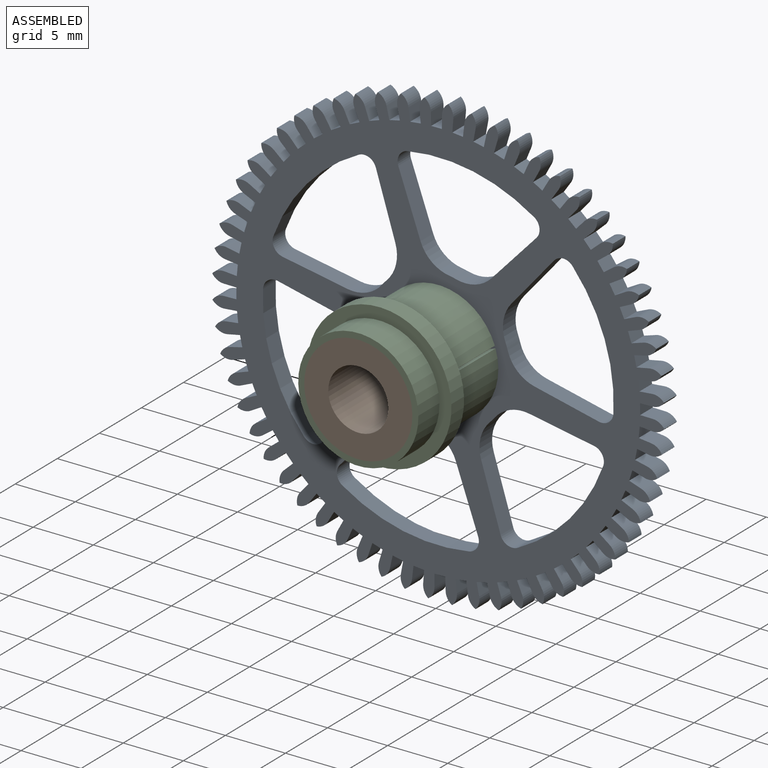
[diagram: assembled view]
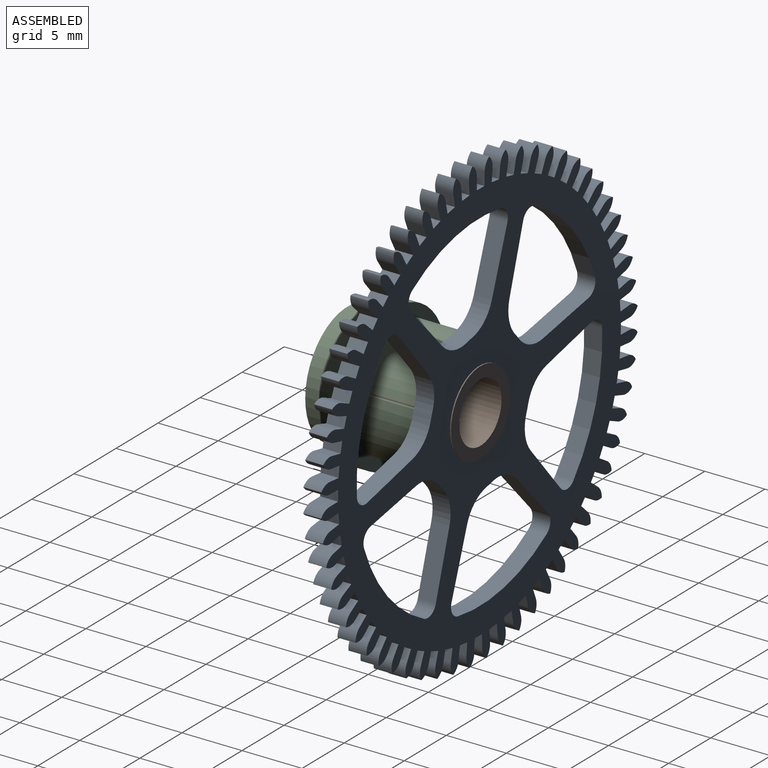
[diagram: assembled view, second angle]
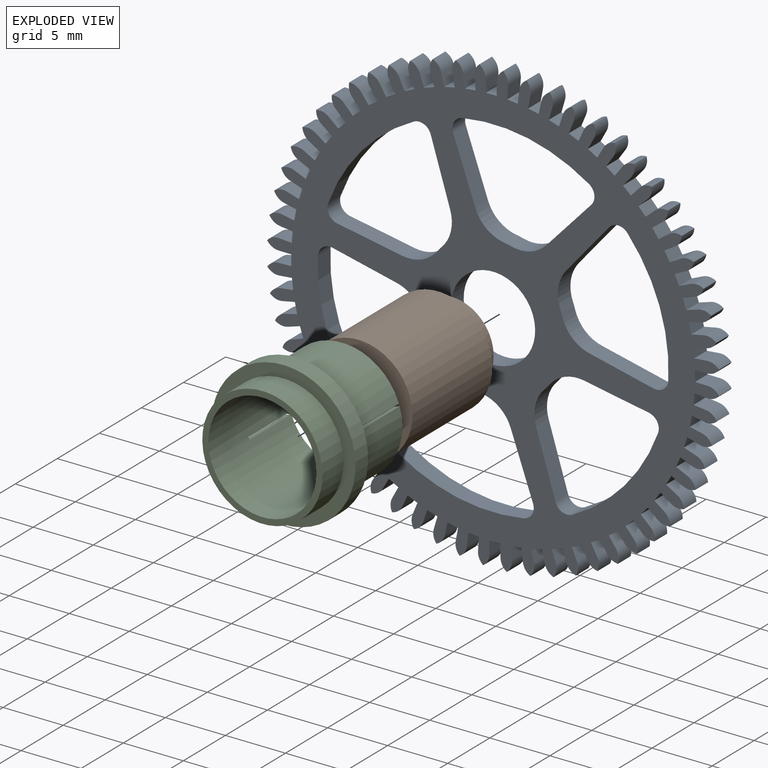
[diagram: exploded view]
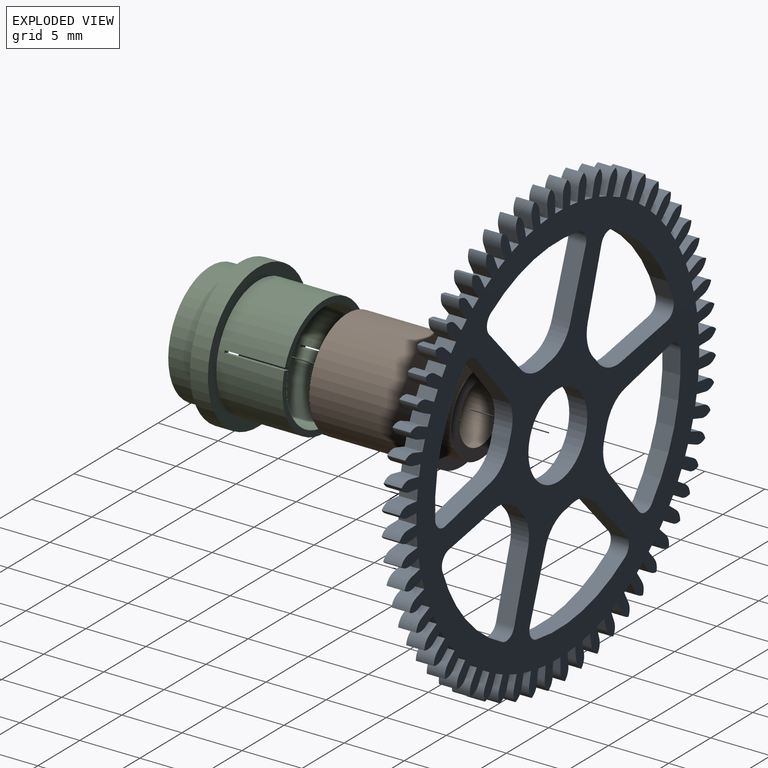
[diagram: exploded view, second angle]
ASSEMBLY  parts=3 mates=2
PART A: 351 faces, bbox 37.6x1.5x37.6 mm
  f0: cylinder r=3mm len=2.72mm, axis (0,-1,0), area 4.8mm2, adj f1,f5,f49,f50
  f1: cylinder r=6mm len=1.5mm, axis (0,-1,0), area 0.9mm2, adj f0,f2,f49,f50
  f2: cylinder r=3mm len=2.72mm, axis (0,-1,0), area 4.8mm2, adj f1,f3,f49,f50
  f3: plane 4.69x2.85mm, normal (0.52,0,-0.85), area 8.2mm2, adj f2,f6,f49,f50
  f4: cylinder r=1mm len=1.5mm, axis (0,-1,0), area 2.6mm2, adj f5,f7,f49,f50
  f5: plane 4.69x2.85mm, normal (0.52,0,0.85), area 8.2mm2, adj f0,f4,f49,f50
  f6: cylinder r=1mm len=1.5mm, axis (0,-1,0), area 2.6mm2, adj f3,f7,f49,f50
  f7: cylinder r=14.6mm len=10.75mm, axis (0,-1,0), area 16.5mm2, adj f4,f6,f49,f50
  f8: cylinder r=3mm len=2.6mm, axis (0,-1,0), area 4.8mm2, adj f9,f13,f49,f50
  f9: cylinder r=6mm len=1.5mm, axis (0,-1,0), area 0.9mm2, adj f8,f10,f49,f50
  f10: cylinder r=3mm len=3.07mm, axis (0,-1,0), area 4.8mm2, adj f9,f11,f49,f50
  f11: plane 4.81x2.64mm, normal (-0.48,0,-0.88), area 8.2mm2, adj f10,f14,f49,f50
  f12: cylinder r=1mm len=1.5mm, axis (0,-1,0), area 2.6mm2, adj f13,f15,f49,f50
  f13: plane 5.49x1.5mm, normal (1,0,-0.02), area 8.2mm2, adj f8,f12,f49,f50
  f14: cylinder r=1mm len=1.5mm, axis (0,-1,0), area 2.6mm2, adj f11,f15,f49,f50
  f15: cylinder r=14.6mm len=9.31mm, axis (0,-1,0), area 16.5mm2, adj f12,f14,f49,f50
  f16: cylinder r=3mm len=3.07mm, axis (0,-1,0), area 4.8mm2, adj f17,f21,f49,f50
  f17: cylinder r=6mm len=1.5mm, axis (0,-1,0), area 0.9mm2, adj f16,f18,f49,f50
  f18: cylinder r=3mm len=2.6mm, axis (0,-1,0), area 4.8mm2, adj f17,f19,f49,f50
  f19: plane 5.49x1.5mm, normal (-1,0,-0.02), area 8.2mm2, adj f18,f22,f49,f50
  f20: cylinder r=1mm len=1.5mm, axis (0,-1,0), area 2.6mm2, adj f21,f23,f49,f50
  f21: plane 4.81x2.64mm, normal (0.48,0,-0.88), area 8.2mm2, adj f16,f20,f49,f50
  f22: cylinder r=1mm len=1.5mm, axis (0,-1,0), area 2.6mm2, adj f19,f23,f49,f50
  f23: cylinder r=14.6mm len=9.31mm, axis (0,-1,0), area 16.5mm2, adj f20,f22,f49,f50
  f24: cylinder r=3mm len=2.72mm, axis (0,-1,0), area 4.8mm2, adj f25,f29,f49,f50
  f25: cylinder r=6mm len=1.5mm, axis (0,-1,0), area 0.9mm2, adj f24,f26,f49,f50
  f26: cylinder r=3mm len=2.72mm, axis (0,-1,0), area 4.8mm2, adj f25,f27,f49,f50
  f27: plane 4.69x2.85mm, normal (-0.52,0,0.85), area 8.2mm2, adj f26,f30,f49,f50
  f28: cylinder r=1mm len=1.5mm, axis (0,-1,0), area 2.6mm2, adj f29,f31,f49,f50
  f29: plane 4.69x2.85mm, normal (-0.52,0,-0.85), area 8.2mm2, adj f24,f28,f49,f50
  f30: cylinder r=1mm len=1.5mm, axis (0,-1,0), area 2.6mm2, adj f27,f31,f49,f50
  f31: cylinder r=14.6mm len=10.75mm, axis (0,-1,0), area 16.5mm2, adj f28,f30,f49,f50
  f32: cylinder r=3mm len=2.6mm, axis (0,-1,0), area 4.8mm2, adj f33,f37,f49,f50
  f33: cylinder r=6mm len=1.5mm, axis (0,-1,0), area 0.9mm2, adj f32,f34,f49,f50
  f34: cylinder r=3mm len=3.07mm, axis (0,-1,0), area 4.8mm2, adj f33,f35,f49,f50
  f35: plane 4.81x2.64mm, normal (0.48,0,0.88), area 8.2mm2, adj f34,f38,f49,f50
  f36: cylinder r=1mm len=1.5mm, axis (0,-1,0), area 2.6mm2, adj f37,f39,f49,f50
  f37: plane 5.49x1.5mm, normal (-1,0,0.02), area 8.2mm2, adj f32,f36,f49,f50
  f38: cylinder r=1mm len=1.5mm, axis (0,-1,0), area 2.6mm2, adj f35,f39,f49,f50
  f39: cylinder r=14.6mm len=9.31mm, axis (0,-1,0), area 16.5mm2, adj f36,f38,f49,f50
  f40: cylinder r=3mm len=3.07mm, axis (0,-1,0), area 4.8mm2, adj f41,f45,f49,f50
  f41: cylinder r=6mm len=1.5mm, axis (0,-1,0), area 0.9mm2, adj f40,f42,f49,f50
  f42: cylinder r=3mm len=2.6mm, axis (0,-1,0), area 4.8mm2, adj f41,f43,f49,f50
  f43: plane 5.49x1.5mm, normal (1,0,0.02), area 8.2mm2, adj f42,f46,f49,f50
  f44: cylinder r=1mm len=1.5mm, axis (0,-1,0), area 2.6mm2, adj f45,f47,f49,f50
  f45: plane 4.81x2.64mm, normal (-0.48,0,0.88), area 8.2mm2, adj f40,f44,f49,f50
  f46: cylinder r=1mm len=1.5mm, axis (0,-1,0), area 2.6mm2, adj f43,f47,f49,f50
  f47: cylinder r=14.6mm len=9.31mm, axis (0,-1,0), area 16.5mm2, adj f44,f46,f49,f50
  f48: cylinder r=3.5mm len=7mm, axis (0,-1,0), area 33mm2, adj f49,f50
  f49: plane 37.6x37.6mm, normal (0,1,0), area 509.1mm2, adj f0,f1,f2,f3,f4,f5,f6,f7
  f50: plane 37.6x37.6mm, normal (0,-1,0), area 509.1mm2, adj f0,f1,f2,f3,f4,f5,f6,f7
  f51: cylinder r=1.16mm len=1.5mm, axis (0,-1,0), area 1.7mm2, adj f49,f50,f52,f349
  f52: plane 1.5x1.05mm, normal (1,0,-0.09), area 1.6mm2, adj f49,f50,f51,f53
  f53: plane 1.5x0.89mm, normal (0.1,0,0.99), area 1.3mm2, adj f49,f50,f52,f54
  f54: plane 1.5x1.05mm, normal (-0.99,0,0.12), area 1.6mm2, adj f49,f50,f53,f55
  f55: cylinder r=1.16mm len=1.5mm, axis (0,-1,0), area 1.7mm2, adj f49,f50,f54,f56
  f56: cylinder r=1.16mm len=1.5mm, axis (0,-1,0), area 1.7mm2, adj f49,f50,f55,f57
  f57: plane 1.5x1.04mm, normal (0.98,0,-0.19), area 1.6mm2, adj f49,f50,f56,f58
  f58: plane 1.5x0.87mm, normal (0.21,0,0.98), area 1.3mm2, adj f49,f50,f57,f59
  f59: plane 1.5x1.03mm, normal (-0.97,0,0.22), area 1.6mm2, adj f49,f50,f58,f60
  f60: cylinder r=1.16mm len=1.5mm, axis (0,-1,0), area 1.7mm2, adj f49,f50,f59,f61
  f61: cylinder r=1.16mm len=1.5mm, axis (0,-1,0), area 1.7mm2, adj f49,f50,f60,f62
  f62: plane 1.5x1.01mm, normal (0.96,0,-0.29), area 1.6mm2, adj f49,f50,f61,f63
  f63: plane 1.5x0.85mm, normal (0.31,0,0.95), area 1.3mm2, adj f49,f50,f62,f64
  f64: plane 1.5x1mm, normal (-0.95,0,0.33), area 1.6mm2, adj f49,f50,f63,f65
  f65: cylinder r=1.16mm len=1.5mm, axis (0,-1,0), area 1.7mm2, adj f49,f50,f64,f66
  f66: cylinder r=1.16mm len=1.5mm, axis (0,-1,0), area 1.7mm2, adj f49,f50,f65,f67
  f67: plane 1.5x0.97mm, normal (0.92,0,-0.39), area 1.6mm2, adj f49,f50,f66,f68
  f68: plane 1.5x0.81mm, normal (0.41,0,0.91), area 1.3mm2, adj f49,f50,f67,f69
  f69: plane 1.5x0.96mm, normal (-0.91,0,0.42), area 1.6mm2, adj f49,f50,f68,f70
  f70: cylinder r=1.16mm len=1.5mm, axis (0,-1,0), area 1.7mm2, adj f49,f50,f69,f71
  f71: cylinder r=1.16mm len=1.5mm, axis (0,-1,0), area 1.7mm2, adj f49,f50,f70,f72
  f72: plane 1.5x0.92mm, normal (0.87,0,-0.48), area 1.6mm2, adj f49,f50,f71,f73
  f73: plane 1.5x0.77mm, normal (0.5,0,0.87), area 1.3mm2, adj f49,f50,f72,f74
  f74: plane 1.5x0.9mm, normal (-0.86,0,0.52), area 1.6mm2, adj f49,f50,f73,f75
  f75: cylinder r=1.16mm len=1.5mm, axis (0,-1,0), area 1.7mm2, adj f49,f50,f74,f76
  f76: cylinder r=1.16mm len=1.5mm, axis (0,-1,0), area 1.7mm2, adj f49,f50,f75,f77
  f77: plane 1.5x0.86mm, normal (0.82,0,-0.57), area 1.6mm2, adj f49,f50,f76,f78
  f78: plane 1.5x0.72mm, normal (0.59,0,0.81), area 1.3mm2, adj f49,f50,f77,f79
  f79: plane 1.5x0.84mm, normal (-0.8,0,0.6), area 1.6mm2, adj f49,f50,f78,f80
  f80: cylinder r=1.16mm len=1.5mm, axis (0,-1,0), area 1.7mm2, adj f49,f50,f79,f81
  f81: cylinder r=1.16mm len=1.5mm, axis (0,-1,0), area 1.7mm2, adj f49,f50,f80,f82
  f82: plane 1.5x0.8mm, normal (0.75,0,-0.66), area 1.6mm2, adj f49,f50,f81,f83
  f83: plane 1.5x0.66mm, normal (0.67,0,0.74), area 1.3mm2, adj f49,f50,f82,f84
  f84: plane 1.5x0.77mm, normal (-0.73,0,0.68), area 1.6mm2, adj f49,f50,f83,f85
  f85: cylinder r=1.16mm len=1.5mm, axis (0,-1,0), area 1.7mm2, adj f49,f50,f84,f86
  f86: cylinder r=1.16mm len=1.5mm, axis (0,-1,0), area 1.7mm2, adj f49,f50,f85,f87
  f87: plane 1.5x0.77mm, normal (0.68,0,-0.73), area 1.6mm2, adj f49,f50,f86,f88
  f88: plane 1.5x0.66mm, normal (0.74,0,0.67), area 1.3mm2, adj f49,f50,f87,f89
  f89: plane 1.5x0.8mm, normal (-0.66,0,0.75), area 1.6mm2, adj f49,f50,f88,f90
  f90: cylinder r=1.16mm len=1.5mm, axis (0,-1,0), area 1.7mm2, adj f49,f50,f89,f91
  f91: cylinder r=1.16mm len=1.5mm, axis (0,-1,0), area 1.7mm2, adj f49,f50,f90,f92
  f92: plane 1.5x0.84mm, normal (0.6,0,-0.8), area 1.6mm2, adj f49,f50,f91,f93
  f93: plane 1.5x0.72mm, normal (0.81,0,0.59), area 1.3mm2, adj f49,f50,f92,f94
  f94: plane 1.5x0.86mm, normal (-0.57,0,0.82), area 1.6mm2, adj f49,f50,f93,f95
  f95: cylinder r=1.16mm len=1.5mm, axis (0,-1,0), area 1.7mm2, adj f49,f50,f94,f96
  f96: cylinder r=1.16mm len=1.5mm, axis (0,-1,0), area 1.7mm2, adj f49,f50,f95,f97
  f97: plane 1.5x0.9mm, normal (0.52,0,-0.86), area 1.6mm2, adj f49,f50,f96,f98
  f98: plane 1.5x0.77mm, normal (0.87,0,0.5), area 1.3mm2, adj f49,f50,f97,f99
  f99: plane 1.5x0.92mm, normal (-0.48,0,0.87), area 1.6mm2, adj f49,f50,f98,f100
  f100: cylinder r=1.16mm len=1.5mm, axis (0,-1,0), area 1.7mm2, adj f49,f50,f99,f101
  f101: cylinder r=1.16mm len=1.5mm, axis (0,-1,0), area 1.7mm2, adj f49,f50,f100,f102
  f102: plane 1.5x0.96mm, normal (0.42,0,-0.91), area 1.6mm2, adj f49,f50,f101,f103
  f103: plane 1.5x0.81mm, normal (0.91,0,0.41), area 1.3mm2, adj f49,f50,f102,f104
  f104: plane 1.5x0.97mm, normal (-0.39,0,0.92), area 1.6mm2, adj f49,f50,f103,f105
  f105: cylinder r=1.16mm len=1.5mm, axis (0,-1,0), area 1.7mm2, adj f49,f50,f104,f106
  f106: cylinder r=1.16mm len=1.5mm, axis (0,-1,0), area 1.7mm2, adj f49,f50,f105,f107
  f107: plane 1.5x1mm, normal (0.33,0,-0.95), area 1.6mm2, adj f49,f50,f106,f108
  f108: plane 1.5x0.85mm, normal (0.95,0,0.31), area 1.3mm2, adj f49,f50,f107,f109
  f109: plane 1.5x1.01mm, normal (-0.29,0,0.96), area 1.6mm2, adj f49,f50,f108,f110
  f110: cylinder r=1.16mm len=1.5mm, axis (0,-1,0), area 1.7mm2, adj f49,f50,f109,f111
  f111: cylinder r=1.16mm len=1.5mm, axis (0,-1,0), area 1.7mm2, adj f49,f50,f110,f112
  f112: plane 1.5x1.03mm, normal (0.22,0,-0.97), area 1.6mm2, adj f49,f50,f111,f113
  f113: plane 1.5x0.87mm, normal (0.98,0,0.21), area 1.3mm2, adj f49,f50,f112,f114
  f114: plane 1.5x1.04mm, normal (-0.19,0,0.98), area 1.6mm2, adj f49,f50,f113,f115
  f115: cylinder r=1.16mm len=1.5mm, axis (0,-1,0), area 1.7mm2, adj f49,f50,f114,f116
  f116: cylinder r=1.16mm len=1.5mm, axis (0,-1,0), area 1.7mm2, adj f49,f50,f115,f117
  f117: plane 1.5x1.05mm, normal (0.12,0,-0.99), area 1.6mm2, adj f49,f50,f116,f118
  f118: plane 1.5x0.89mm, normal (0.99,0,0.1), area 1.3mm2, adj f49,f50,f117,f119
  f119: plane 1.5x1.05mm, normal (-0.09,0,1), area 1.6mm2, adj f49,f50,f118,f120
  f120: cylinder r=1.16mm len=1.5mm, axis (0,-1,0), area 1.7mm2, adj f49,f50,f119,f121
  f121: cylinder r=1.16mm len=1.5mm, axis (0,-1,0), area 1.7mm2, adj f49,f50,f120,f122
  f122: plane 1.5x1.06mm, normal (0.02,0,-1), area 1.6mm2, adj f49,f50,f121,f123
  f123: plane 1.5x0.89mm, normal (1,0,0), area 1.3mm2, adj f49,f50,f122,f124
  f124: plane 1.5x1.06mm, normal (0.02,0,1), area 1.6mm2, adj f49,f50,f123,f125
  f125: cylinder r=1.16mm len=1.5mm, axis (0,-1,0), area 1.7mm2, adj f49,f50,f124,f126
  f126: cylinder r=1.16mm len=1.5mm, axis (0,-1,0), area 1.7mm2, adj f49,f50,f125,f127
  f127: plane 1.5x1.05mm, normal (-0.09,0,-1), area 1.6mm2, adj f49,f50,f126,f128
  f128: plane 1.5x0.89mm, normal (0.99,0,-0.1), area 1.3mm2, adj f49,f50,f127,f129
  f129: plane 1.5x1.05mm, normal (0.12,0,0.99), area 1.6mm2, adj f49,f50,f128,f130
  f130: cylinder r=1.16mm len=1.5mm, axis (0,-1,0), area 1.7mm2, adj f49,f50,f129,f131
  f131: cylinder r=1.16mm len=1.5mm, axis (0,-1,0), area 1.7mm2, adj f49,f50,f130,f132
  f132: plane 1.5x1.04mm, normal (-0.19,0,-0.98), area 1.6mm2, adj f49,f50,f131,f133
  f133: plane 1.5x0.87mm, normal (0.98,0,-0.21), area 1.3mm2, adj f49,f50,f132,f134
  f134: plane 1.5x1.03mm, normal (0.22,0,0.97), area 1.6mm2, adj f49,f50,f133,f135
  f135: cylinder r=1.16mm len=1.5mm, axis (0,-1,0), area 1.7mm2, adj f49,f50,f134,f136
  f136: cylinder r=1.16mm len=1.5mm, axis (0,-1,0), area 1.7mm2, adj f49,f50,f135,f137
  f137: plane 1.5x1.01mm, normal (-0.29,0,-0.96), area 1.6mm2, adj f49,f50,f136,f138
  f138: plane 1.5x0.85mm, normal (0.95,0,-0.31), area 1.3mm2, adj f49,f50,f137,f139
  f139: plane 1.5x1mm, normal (0.33,0,0.95), area 1.6mm2, adj f49,f50,f138,f140
  f140: cylinder r=1.16mm len=1.5mm, axis (0,-1,0), area 1.7mm2, adj f49,f50,f139,f141
  f141: cylinder r=1.16mm len=1.5mm, axis (0,-1,0), area 1.7mm2, adj f49,f50,f140,f142
  f142: plane 1.5x0.97mm, normal (-0.39,0,-0.92), area 1.6mm2, adj f49,f50,f141,f143
  f143: plane 1.5x0.81mm, normal (0.91,0,-0.41), area 1.3mm2, adj f49,f50,f142,f144
  f144: plane 1.5x0.96mm, normal (0.42,0,0.91), area 1.6mm2, adj f49,f50,f143,f145
  f145: cylinder r=1.16mm len=1.5mm, axis (0,-1,0), area 1.7mm2, adj f49,f50,f144,f146
  f146: cylinder r=1.16mm len=1.5mm, axis (0,-1,0), area 1.7mm2, adj f49,f50,f145,f147
  f147: plane 1.5x0.92mm, normal (-0.48,0,-0.87), area 1.6mm2, adj f49,f50,f146,f148
  f148: plane 1.5x0.77mm, normal (0.87,0,-0.5), area 1.3mm2, adj f49,f50,f147,f149
  f149: plane 1.5x0.9mm, normal (0.52,0,0.86), area 1.6mm2, adj f49,f50,f148,f150
  f150: cylinder r=1.16mm len=1.5mm, axis (0,-1,0), area 1.7mm2, adj f49,f50,f149,f151
  f151: cylinder r=1.16mm len=1.5mm, axis (0,-1,0), area 1.7mm2, adj f49,f50,f150,f152
  f152: plane 1.5x0.86mm, normal (-0.57,0,-0.82), area 1.6mm2, adj f49,f50,f151,f153
  f153: plane 1.5x0.72mm, normal (0.81,0,-0.59), area 1.3mm2, adj f49,f50,f152,f154
  f154: plane 1.5x0.84mm, normal (0.6,0,0.8), area 1.6mm2, adj f49,f50,f153,f155
  f155: cylinder r=1.16mm len=1.5mm, axis (0,-1,0), area 1.7mm2, adj f49,f50,f154,f156
  f156: cylinder r=1.16mm len=1.5mm, axis (0,-1,0), area 1.7mm2, adj f49,f50,f155,f157
  f157: plane 1.5x0.8mm, normal (-0.66,0,-0.75), area 1.6mm2, adj f49,f50,f156,f158
  f158: plane 1.5x0.66mm, normal (0.74,0,-0.67), area 1.3mm2, adj f49,f50,f157,f159
  f159: plane 1.5x0.77mm, normal (0.68,0,0.73), area 1.6mm2, adj f49,f50,f158,f160
  f160: cylinder r=1.16mm len=1.5mm, axis (0,-1,0), area 1.7mm2, adj f49,f50,f159,f161
  f161: cylinder r=1.16mm len=1.5mm, axis (0,-1,0), area 1.7mm2, adj f49,f50,f160,f162
  f162: plane 1.5x0.77mm, normal (-0.73,0,-0.68), area 1.6mm2, adj f49,f50,f161,f163
  f163: plane 1.5x0.66mm, normal (0.67,0,-0.74), area 1.3mm2, adj f49,f50,f162,f164
  f164: plane 1.5x0.8mm, normal (0.75,0,0.66), area 1.6mm2, adj f49,f50,f163,f165
  f165: cylinder r=1.16mm len=1.5mm, axis (0,-1,0), area 1.7mm2, adj f49,f50,f164,f166
  f166: cylinder r=1.16mm len=1.5mm, axis (0,-1,0), area 1.7mm2, adj f49,f50,f165,f167
  f167: plane 1.5x0.84mm, normal (-0.8,0,-0.6), area 1.6mm2, adj f49,f50,f166,f168
  f168: plane 1.5x0.72mm, normal (0.59,0,-0.81), area 1.3mm2, adj f49,f50,f167,f169
  f169: plane 1.5x0.86mm, normal (0.82,0,0.57), area 1.6mm2, adj f49,f50,f168,f170
  f170: cylinder r=1.16mm len=1.5mm, axis (0,-1,0), area 1.7mm2, adj f49,f50,f169,f171
  f171: cylinder r=1.16mm len=1.5mm, axis (0,-1,0), area 1.7mm2, adj f49,f50,f170,f172
  f172: plane 1.5x0.9mm, normal (-0.86,0,-0.52), area 1.6mm2, adj f49,f50,f171,f173
  f173: plane 1.5x0.77mm, normal (0.5,0,-0.87), area 1.3mm2, adj f49,f50,f172,f174
  f174: plane 1.5x0.92mm, normal (0.87,0,0.48), area 1.6mm2, adj f49,f50,f173,f175
  f175: cylinder r=1.16mm len=1.5mm, axis (0,-1,0), area 1.7mm2, adj f49,f50,f174,f176
  f176: cylinder r=1.16mm len=1.5mm, axis (0,-1,0), area 1.7mm2, adj f49,f50,f175,f177
  f177: plane 1.5x0.96mm, normal (-0.91,0,-0.42), area 1.6mm2, adj f49,f50,f176,f178
  f178: plane 1.5x0.81mm, normal (0.41,0,-0.91), area 1.3mm2, adj f49,f50,f177,f179
  f179: plane 1.5x0.97mm, normal (0.92,0,0.39), area 1.6mm2, adj f49,f50,f178,f180
  f180: cylinder r=1.16mm len=1.5mm, axis (0,-1,0), area 1.7mm2, adj f49,f50,f179,f181
  f181: cylinder r=1.16mm len=1.5mm, axis (0,-1,0), area 1.7mm2, adj f49,f50,f180,f182
  f182: plane 1.5x1mm, normal (-0.95,0,-0.33), area 1.6mm2, adj f49,f50,f181,f183
  f183: plane 1.5x0.85mm, normal (0.31,0,-0.95), area 1.3mm2, adj f49,f50,f182,f184
  f184: plane 1.5x1.01mm, normal (0.96,0,0.29), area 1.6mm2, adj f49,f50,f183,f185
  f185: cylinder r=1.16mm len=1.5mm, axis (0,-1,0), area 1.7mm2, adj f49,f50,f184,f186
  f186: cylinder r=1.16mm len=1.5mm, axis (0,-1,0), area 1.7mm2, adj f49,f50,f185,f187
  f187: plane 1.5x1.03mm, normal (-0.97,0,-0.22), area 1.6mm2, adj f49,f50,f186,f188
  f188: plane 1.5x0.87mm, normal (0.21,0,-0.98), area 1.3mm2, adj f49,f50,f187,f189
  f189: plane 1.5x1.04mm, normal (0.98,0,0.19), area 1.6mm2, adj f49,f50,f188,f190
  f190: cylinder r=1.16mm len=1.5mm, axis (0,-1,0), area 1.7mm2, adj f49,f50,f189,f191
  f191: cylinder r=1.16mm len=1.5mm, axis (0,-1,0), area 1.7mm2, adj f49,f50,f190,f192
  f192: plane 1.5x1.05mm, normal (-0.99,0,-0.12), area 1.6mm2, adj f49,f50,f191,f193
  f193: plane 1.5x0.89mm, normal (0.1,0,-0.99), area 1.3mm2, adj f49,f50,f192,f194
  f194: plane 1.5x1.05mm, normal (1,0,0.09), area 1.6mm2, adj f49,f50,f193,f195
  f195: cylinder r=1.16mm len=1.5mm, axis (0,-1,0), area 1.7mm2, adj f49,f50,f194,f196
  f196: cylinder r=1.16mm len=1.5mm, axis (0,-1,0), area 1.7mm2, adj f49,f50,f195,f197
  f197: plane 1.5x1.06mm, normal (-1,0,-0.02), area 1.6mm2, adj f49,f50,f196,f198
  f198: plane 1.5x0.89mm, normal (0,0,-1), area 1.3mm2, adj f49,f50,f197,f199
  f199: plane 1.5x1.06mm, normal (1,0,-0.02), area 1.6mm2, adj f49,f50,f198,f200
  f200: cylinder r=1.16mm len=1.5mm, axis (0,-1,0), area 1.7mm2, adj f49,f50,f199,f201
  f201: cylinder r=1.16mm len=1.5mm, axis (0,-1,0), area 1.7mm2, adj f49,f50,f200,f202
  f202: plane 1.5x1.05mm, normal (-1,0,0.09), area 1.6mm2, adj f49,f50,f201,f203
  f203: plane 1.5x0.89mm, normal (-0.1,0,-0.99), area 1.3mm2, adj f49,f50,f202,f204
  f204: plane 1.5x1.05mm, normal (0.99,0,-0.12), area 1.6mm2, adj f49,f50,f203,f205
  f205: cylinder r=1.16mm len=1.5mm, axis (0,-1,0), area 1.7mm2, adj f49,f50,f204,f206
  f206: cylinder r=1.16mm len=1.5mm, axis (0,-1,0), area 1.7mm2, adj f49,f50,f205,f207
  f207: plane 1.5x1.04mm, normal (-0.98,0,0.19), area 1.6mm2, adj f49,f50,f206,f208
  f208: plane 1.5x0.87mm, normal (-0.21,0,-0.98), area 1.3mm2, adj f49,f50,f207,f209
  f209: plane 1.5x1.03mm, normal (0.97,0,-0.22), area 1.6mm2, adj f49,f50,f208,f210
  f210: cylinder r=1.16mm len=1.5mm, axis (0,-1,0), area 1.7mm2, adj f49,f50,f209,f211
  f211: cylinder r=1.16mm len=1.5mm, axis (0,-1,0), area 1.7mm2, adj f49,f50,f210,f212
  f212: plane 1.5x1.01mm, normal (-0.96,0,0.29), area 1.6mm2, adj f49,f50,f211,f213
  f213: plane 1.5x0.85mm, normal (-0.31,0,-0.95), area 1.3mm2, adj f49,f50,f212,f214
  f214: plane 1.5x1mm, normal (0.95,0,-0.33), area 1.6mm2, adj f49,f50,f213,f215
  f215: cylinder r=1.16mm len=1.5mm, axis (0,-1,0), area 1.7mm2, adj f49,f50,f214,f216
  f216: cylinder r=1.16mm len=1.5mm, axis (0,-1,0), area 1.7mm2, adj f49,f50,f215,f217
  f217: plane 1.5x0.97mm, normal (-0.92,0,0.39), area 1.6mm2, adj f49,f50,f216,f218
  f218: plane 1.5x0.81mm, normal (-0.41,0,-0.91), area 1.3mm2, adj f49,f50,f217,f219
  f219: plane 1.5x0.96mm, normal (0.91,0,-0.42), area 1.6mm2, adj f49,f50,f218,f220
  f220: cylinder r=1.16mm len=1.5mm, axis (0,-1,0), area 1.7mm2, adj f49,f50,f219,f221
  f221: cylinder r=1.16mm len=1.5mm, axis (0,-1,0), area 1.7mm2, adj f49,f50,f220,f222
  f222: plane 1.5x0.92mm, normal (-0.87,0,0.48), area 1.6mm2, adj f49,f50,f221,f223
  f223: plane 1.5x0.77mm, normal (-0.5,0,-0.87), area 1.3mm2, adj f49,f50,f222,f224
  f224: plane 1.5x0.9mm, normal (0.86,0,-0.52), area 1.6mm2, adj f49,f50,f223,f225
  f225: cylinder r=1.16mm len=1.5mm, axis (0,-1,0), area 1.7mm2, adj f49,f50,f224,f226
  f226: cylinder r=1.16mm len=1.5mm, axis (0,-1,0), area 1.7mm2, adj f49,f50,f225,f227
  f227: plane 1.5x0.86mm, normal (-0.82,0,0.57), area 1.6mm2, adj f49,f50,f226,f228
  f228: plane 1.5x0.72mm, normal (-0.59,0,-0.81), area 1.3mm2, adj f49,f50,f227,f229
  f229: plane 1.5x0.84mm, normal (0.8,0,-0.6), area 1.6mm2, adj f49,f50,f228,f230
  f230: cylinder r=1.16mm len=1.5mm, axis (0,-1,0), area 1.7mm2, adj f49,f50,f229,f231
  f231: cylinder r=1.16mm len=1.5mm, axis (0,-1,0), area 1.7mm2, adj f49,f50,f230,f232
  f232: plane 1.5x0.8mm, normal (-0.75,0,0.66), area 1.6mm2, adj f49,f50,f231,f233
  f233: plane 1.5x0.66mm, normal (-0.67,0,-0.74), area 1.3mm2, adj f49,f50,f232,f234
  f234: plane 1.5x0.77mm, normal (0.73,0,-0.68), area 1.6mm2, adj f49,f50,f233,f235
  f235: cylinder r=1.16mm len=1.5mm, axis (0,-1,0), area 1.7mm2, adj f49,f50,f234,f236
  f236: cylinder r=1.16mm len=1.5mm, axis (0,-1,0), area 1.7mm2, adj f49,f50,f235,f237
  f237: plane 1.5x0.77mm, normal (-0.68,0,0.73), area 1.6mm2, adj f49,f50,f236,f238
  f238: plane 1.5x0.66mm, normal (-0.74,0,-0.67), area 1.3mm2, adj f49,f50,f237,f239
  f239: plane 1.5x0.8mm, normal (0.66,0,-0.75), area 1.6mm2, adj f49,f50,f238,f240
  f240: cylinder r=1.16mm len=1.5mm, axis (0,-1,0), area 1.7mm2, adj f49,f50,f239,f241
  f241: cylinder r=1.16mm len=1.5mm, axis (0,-1,0), area 1.7mm2, adj f49,f50,f240,f242
  f242: plane 1.5x0.84mm, normal (-0.6,0,0.8), area 1.6mm2, adj f49,f50,f241,f243
  f243: plane 1.5x0.72mm, normal (-0.81,0,-0.59), area 1.3mm2, adj f49,f50,f242,f244
  f244: plane 1.5x0.86mm, normal (0.57,0,-0.82), area 1.6mm2, adj f49,f50,f243,f245
  f245: cylinder r=1.16mm len=1.5mm, axis (0,-1,0), area 1.7mm2, adj f49,f50,f244,f246
  f246: cylinder r=1.16mm len=1.5mm, axis (0,-1,0), area 1.7mm2, adj f49,f50,f245,f247
  f247: plane 1.5x0.9mm, normal (-0.52,0,0.86), area 1.6mm2, adj f49,f50,f246,f248
  f248: plane 1.5x0.77mm, normal (-0.87,0,-0.5), area 1.3mm2, adj f49,f50,f247,f249
  f249: plane 1.5x0.92mm, normal (0.48,0,-0.87), area 1.6mm2, adj f49,f50,f248,f250
  f250: cylinder r=1.16mm len=1.5mm, axis (0,-1,0), area 1.7mm2, adj f49,f50,f249,f251
  f251: cylinder r=1.16mm len=1.5mm, axis (0,-1,0), area 1.7mm2, adj f49,f50,f250,f252
  f252: plane 1.5x0.96mm, normal (-0.42,0,0.91), area 1.6mm2, adj f49,f50,f251,f253
  f253: plane 1.5x0.81mm, normal (-0.91,0,-0.41), area 1.3mm2, adj f49,f50,f252,f254
  f254: plane 1.5x0.97mm, normal (0.39,0,-0.92), area 1.6mm2, adj f49,f50,f253,f255
  f255: cylinder r=1.16mm len=1.5mm, axis (0,-1,0), area 1.7mm2, adj f49,f50,f254,f256
  f256: cylinder r=1.16mm len=1.5mm, axis (0,-1,0), area 1.7mm2, adj f49,f50,f255,f257
  f257: plane 1.5x1mm, normal (-0.33,0,0.95), area 1.6mm2, adj f49,f50,f256,f258
  f258: plane 1.5x0.85mm, normal (-0.95,0,-0.31), area 1.3mm2, adj f49,f50,f257,f259
  f259: plane 1.5x1.01mm, normal (0.29,0,-0.96), area 1.6mm2, adj f49,f50,f258,f260
  f260: cylinder r=1.16mm len=1.5mm, axis (0,-1,0), area 1.7mm2, adj f49,f50,f259,f261
  f261: cylinder r=1.16mm len=1.5mm, axis (0,-1,0), area 1.7mm2, adj f49,f50,f260,f262
  f262: plane 1.5x1.03mm, normal (-0.22,0,0.97), area 1.6mm2, adj f49,f50,f261,f263
  f263: plane 1.5x0.87mm, normal (-0.98,0,-0.21), area 1.3mm2, adj f49,f50,f262,f264
  f264: plane 1.5x1.04mm, normal (0.19,0,-0.98), area 1.6mm2, adj f49,f50,f263,f265
  f265: cylinder r=1.16mm len=1.5mm, axis (0,-1,0), area 1.7mm2, adj f49,f50,f264,f266
  f266: cylinder r=1.16mm len=1.5mm, axis (0,-1,0), area 1.7mm2, adj f49,f50,f265,f267
  f267: plane 1.5x1.05mm, normal (-0.12,0,0.99), area 1.6mm2, adj f49,f50,f266,f268
  f268: plane 1.5x0.89mm, normal (-0.99,0,-0.1), area 1.3mm2, adj f49,f50,f267,f269
  f269: plane 1.5x1.05mm, normal (0.09,0,-1), area 1.6mm2, adj f49,f50,f268,f270
  f270: cylinder r=1.16mm len=1.5mm, axis (0,-1,0), area 1.7mm2, adj f49,f50,f269,f271
  f271: cylinder r=1.16mm len=1.5mm, axis (0,-1,0), area 1.7mm2, adj f49,f50,f270,f272
  f272: plane 1.5x1.06mm, normal (-0.02,0,1), area 1.6mm2, adj f49,f50,f271,f273
  f273: plane 1.5x0.89mm, normal (-1,0,0), area 1.3mm2, adj f49,f50,f272,f274
  f274: plane 1.5x1.06mm, normal (-0.02,0,-1), area 1.6mm2, adj f49,f50,f273,f275
  f275: cylinder r=1.16mm len=1.5mm, axis (0,-1,0), area 1.7mm2, adj f49,f50,f274,f276
  f276: cylinder r=1.16mm len=1.5mm, axis (0,-1,0), area 1.7mm2, adj f49,f50,f275,f277
  f277: plane 1.5x1.05mm, normal (0.09,0,1), area 1.6mm2, adj f49,f50,f276,f278
  f278: plane 1.5x0.89mm, normal (-0.99,0,0.1), area 1.3mm2, adj f49,f50,f277,f279
  f279: plane 1.5x1.05mm, normal (-0.12,0,-0.99), area 1.6mm2, adj f49,f50,f278,f280
  f280: cylinder r=1.16mm len=1.5mm, axis (0,-1,0), area 1.7mm2, adj f49,f50,f279,f281
  f281: cylinder r=1.16mm len=1.5mm, axis (0,-1,0), area 1.7mm2, adj f49,f50,f280,f282
  f282: plane 1.5x1.04mm, normal (0.19,0,0.98), area 1.6mm2, adj f49,f50,f281,f283
  f283: plane 1.5x0.87mm, normal (-0.98,0,0.21), area 1.3mm2, adj f49,f50,f282,f284
  f284: plane 1.5x1.03mm, normal (-0.22,0,-0.97), area 1.6mm2, adj f49,f50,f283,f285
  f285: cylinder r=1.16mm len=1.5mm, axis (0,-1,0), area 1.7mm2, adj f49,f50,f284,f286
  f286: cylinder r=1.16mm len=1.5mm, axis (0,-1,0), area 1.7mm2, adj f49,f50,f285,f287
  f287: plane 1.5x1.01mm, normal (0.29,0,0.96), area 1.6mm2, adj f49,f50,f286,f288
  f288: plane 1.5x0.85mm, normal (-0.95,0,0.31), area 1.3mm2, adj f49,f50,f287,f289
  f289: plane 1.5x1mm, normal (-0.33,0,-0.95), area 1.6mm2, adj f49,f50,f288,f290
  f290: cylinder r=1.16mm len=1.5mm, axis (0,-1,0), area 1.7mm2, adj f49,f50,f289,f291
  f291: cylinder r=1.16mm len=1.5mm, axis (0,-1,0), area 1.7mm2, adj f49,f50,f290,f292
  f292: plane 1.5x0.97mm, normal (0.39,0,0.92), area 1.6mm2, adj f49,f50,f291,f293
  f293: plane 1.5x0.81mm, normal (-0.91,0,0.41), area 1.3mm2, adj f49,f50,f292,f294
  f294: plane 1.5x0.96mm, normal (-0.42,0,-0.91), area 1.6mm2, adj f49,f50,f293,f295
  f295: cylinder r=1.16mm len=1.5mm, axis (0,-1,0), area 1.7mm2, adj f49,f50,f294,f296
  f296: cylinder r=1.16mm len=1.5mm, axis (0,-1,0), area 1.7mm2, adj f49,f50,f295,f297
  f297: plane 1.5x0.92mm, normal (0.48,0,0.87), area 1.6mm2, adj f49,f50,f296,f298
  f298: plane 1.5x0.77mm, normal (-0.87,0,0.5), area 1.3mm2, adj f49,f50,f297,f299
  f299: plane 1.5x0.9mm, normal (-0.52,0,-0.86), area 1.6mm2, adj f49,f50,f298,f300
  f300: cylinder r=1.16mm len=1.5mm, axis (0,-1,0), area 1.7mm2, adj f49,f50,f299,f301
  f301: cylinder r=1.16mm len=1.5mm, axis (0,-1,0), area 1.7mm2, adj f49,f50,f300,f302
  f302: plane 1.5x0.86mm, normal (0.57,0,0.82), area 1.6mm2, adj f49,f50,f301,f303
  f303: plane 1.5x0.72mm, normal (-0.81,0,0.59), area 1.3mm2, adj f49,f50,f302,f304
  f304: plane 1.5x0.84mm, normal (-0.6,0,-0.8), area 1.6mm2, adj f49,f50,f303,f305
  f305: cylinder r=1.16mm len=1.5mm, axis (0,-1,0), area 1.7mm2, adj f49,f50,f304,f306
  f306: cylinder r=1.16mm len=1.5mm, axis (0,-1,0), area 1.7mm2, adj f49,f50,f305,f307
  f307: plane 1.5x0.8mm, normal (0.66,0,0.75), area 1.6mm2, adj f49,f50,f306,f308
  f308: plane 1.5x0.66mm, normal (-0.74,0,0.67), area 1.3mm2, adj f49,f50,f307,f309
  f309: plane 1.5x0.77mm, normal (-0.68,0,-0.73), area 1.6mm2, adj f49,f50,f308,f310
  f310: cylinder r=1.16mm len=1.5mm, axis (0,-1,0), area 1.7mm2, adj f49,f50,f309,f311
  f311: cylinder r=1.16mm len=1.5mm, axis (0,-1,0), area 1.7mm2, adj f49,f50,f310,f312
  f312: plane 1.5x0.77mm, normal (0.73,0,0.68), area 1.6mm2, adj f49,f50,f311,f313
  f313: plane 1.5x0.66mm, normal (-0.67,0,0.74), area 1.3mm2, adj f49,f50,f312,f314
  f314: plane 1.5x0.8mm, normal (-0.75,0,-0.66), area 1.6mm2, adj f49,f50,f313,f315
  f315: cylinder r=1.16mm len=1.5mm, axis (0,-1,0), area 1.7mm2, adj f49,f50,f314,f316
  f316: cylinder r=1.16mm len=1.5mm, axis (0,-1,0), area 1.7mm2, adj f49,f50,f315,f317
  f317: plane 1.5x0.84mm, normal (0.8,0,0.6), area 1.6mm2, adj f49,f50,f316,f318
  f318: plane 1.5x0.72mm, normal (-0.59,0,0.81), area 1.3mm2, adj f49,f50,f317,f319
  f319: plane 1.5x0.86mm, normal (-0.82,0,-0.57), area 1.6mm2, adj f49,f50,f318,f320
  f320: cylinder r=1.16mm len=1.5mm, axis (0,-1,0), area 1.7mm2, adj f49,f50,f319,f321
  f321: cylinder r=1.16mm len=1.5mm, axis (0,-1,0), area 1.7mm2, adj f49,f50,f320,f322
  f322: plane 1.5x0.9mm, normal (0.86,0,0.52), area 1.6mm2, adj f49,f50,f321,f323
  f323: plane 1.5x0.77mm, normal (-0.5,0,0.87), area 1.3mm2, adj f49,f50,f322,f324
  f324: plane 1.5x0.92mm, normal (-0.87,0,-0.48), area 1.6mm2, adj f49,f50,f323,f325
  f325: cylinder r=1.16mm len=1.5mm, axis (0,-1,0), area 1.7mm2, adj f49,f50,f324,f326
  f326: cylinder r=1.16mm len=1.5mm, axis (0,-1,0), area 1.7mm2, adj f49,f50,f325,f327
  f327: plane 1.5x0.96mm, normal (0.91,0,0.42), area 1.6mm2, adj f49,f50,f326,f328
  f328: plane 1.5x0.81mm, normal (-0.41,0,0.91), area 1.3mm2, adj f49,f50,f327,f329
  f329: plane 1.5x0.97mm, normal (-0.92,0,-0.39), area 1.6mm2, adj f49,f50,f328,f330
  f330: cylinder r=1.16mm len=1.5mm, axis (0,-1,0), area 1.7mm2, adj f49,f50,f329,f331
  f331: cylinder r=1.16mm len=1.5mm, axis (0,-1,0), area 1.7mm2, adj f49,f50,f330,f332
  f332: plane 1.5x1mm, normal (0.95,0,0.33), area 1.6mm2, adj f49,f50,f331,f333
  f333: plane 1.5x0.85mm, normal (-0.31,0,0.95), area 1.3mm2, adj f49,f50,f332,f334
  f334: plane 1.5x1.01mm, normal (-0.96,0,-0.29), area 1.6mm2, adj f49,f50,f333,f335
  f335: cylinder r=1.16mm len=1.5mm, axis (0,-1,0), area 1.7mm2, adj f49,f50,f334,f336
  f336: cylinder r=1.16mm len=1.5mm, axis (0,-1,0), area 1.7mm2, adj f49,f50,f335,f337
  f337: plane 1.5x1.03mm, normal (0.97,0,0.22), area 1.6mm2, adj f49,f50,f336,f338
  f338: plane 1.5x0.87mm, normal (-0.21,0,0.98), area 1.3mm2, adj f49,f50,f337,f339
  f339: plane 1.5x1.04mm, normal (-0.98,0,-0.19), area 1.6mm2, adj f49,f50,f338,f340
  f340: cylinder r=1.16mm len=1.5mm, axis (0,-1,0), area 1.7mm2, adj f49,f50,f339,f341
  f341: cylinder r=1.16mm len=1.5mm, axis (0,-1,0), area 1.7mm2, adj f49,f50,f340,f342
  f342: plane 1.5x1.05mm, normal (0.99,0,0.12), area 1.6mm2, adj f49,f50,f341,f343
  f343: plane 1.5x0.89mm, normal (-0.1,0,0.99), area 1.3mm2, adj f49,f50,f342,f344
  f344: plane 1.5x1.05mm, normal (-1,0,-0.09), area 1.6mm2, adj f49,f50,f343,f345
  f345: cylinder r=1.16mm len=1.5mm, axis (0,-1,0), area 1.7mm2, adj f49,f50,f344,f346
  f346: cylinder r=1.16mm len=1.5mm, axis (0,-1,0), area 1.7mm2, adj f49,f50,f345,f347
  f347: plane 1.5x1.06mm, normal (1,0,0.02), area 1.6mm2, adj f49,f50,f346,f348
  f348: plane 1.5x0.89mm, normal (0,0,1), area 1.3mm2, adj f49,f50,f347,f350
  f349: cylinder r=1.16mm len=1.5mm, axis (0,-1,0), area 1.7mm2, adj f49,f50,f51,f350
  f350: plane 1.5x1.06mm, normal (-1,0,0.02), area 1.6mm2, adj f49,f50,f348,f349
PART B: 6 faces, bbox 9x11.1x9 mm
  f0: cylinder r=3.5mm len=7mm, axis (0,-1,0), area 34.9mm2, adj f1,f4
  f1: plane 7x7mm, normal (0,-1,0), area 18.8mm2, adj f0,f3
  f2: cylinder r=4.5mm len=9.5mm, axis (0,-1,0), area 268.6mm2, adj f4,f5
  f3: cylinder r=2.5mm len=11.09mm, axis (0,-1,0), area 174.2mm2, adj f1,f5
  f4: plane 9x9mm, normal (0,-1,0), area 25.1mm2, adj f0,f2
  f5: plane 9x9mm, normal (0,1,0), area 44mm2, adj f2,f3
PART C: 15 faces, bbox 12x9.5x12 mm
  f0: plane 5x0.5mm, normal (0,0,1), area 2.5mm2, adj f2,f6,f8,f13
  f1: plane 5x0.5mm, normal (0,0,1), area 2.5mm2, adj f5,f6,f8,f13
  f2: plane 0.5x0.2mm, normal (0,1,0), area 0.1mm2, adj f0,f3,f6,f13
  f3: plane 5x0.5mm, normal (0,0,-1), area 2.5mm2, adj f2,f6,f7,f13
  f4: plane 5x0.5mm, normal (0,0,-1), area 2.5mm2, adj f5,f6,f7,f13
  f5: plane 0.5x0.2mm, normal (0,1,0), area 0.1mm2, adj f1,f4,f6,f13
  f6: cylinder r=4.5mm len=9.5mm, axis (0,-1,0), area 266.6mm2, adj f0,f1,f2,f3,f4,f5,f7,f8
  f7: plane 10x4.9mm, normal (0,1,0), area 7.4mm2, adj f3,f4,f6,f13
  f8: plane 10x4.9mm, normal (0,1,0), area 7.4mm2, adj f0,f1,f6,f13
  f9: plane 12x12mm, normal (0,1,0), area 34.6mm2, adj f11,f13
  f10: plane 12x12mm, normal (0,-1,0), area 34.6mm2, adj f11,f12
  f11: cylinder r=6mm len=12mm, axis (0,1,0), area 56.5mm2, adj f9,f10
  f12: cylinder r=5mm len=10mm, axis (0,-1,0), area 78.5mm2, adj f10,f14
  f13: cylinder r=5mm len=10mm, axis (0,-1,0), area 170.8mm2, adj f0,f1,f2,f3,f4,f5,f7,f8
  f14: plane 10x10mm, normal (0,-1,0), area 14.9mm2, adj f6,f12
PLACE A rot(axis=(0,-1,0),18.5deg) t=(0.49,1.1,-0.96)mm
PLACE B rot(axis=(0.16,0,-0.99),180deg) t=(0.49,-9.9,-0.96)mm
PLACE C rot(axis=(0,-1,0),18.5deg) t=(0.49,-0.4,-0.96)mm
MATE fastened A.f1 <-> B.f0  axis (0,-1,0) through (0.49,-0.4,-0.96)mm
MATE fastened B.f0 <-> C.f6  axis (0,1,0) through (0.49,-9.9,-0.96)mm
